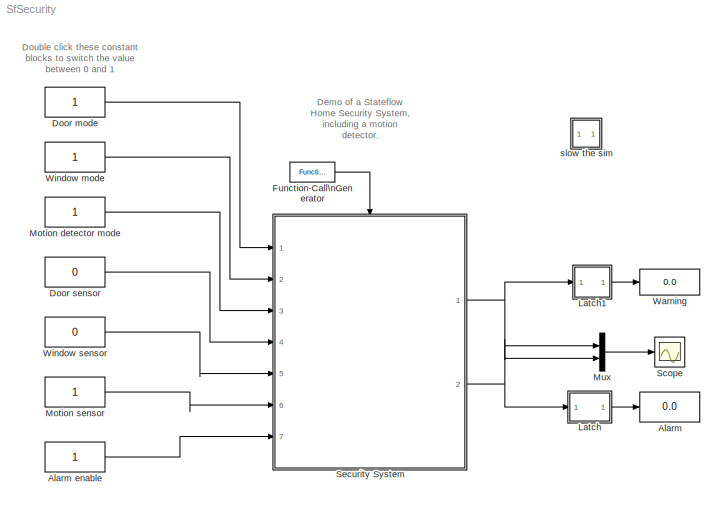
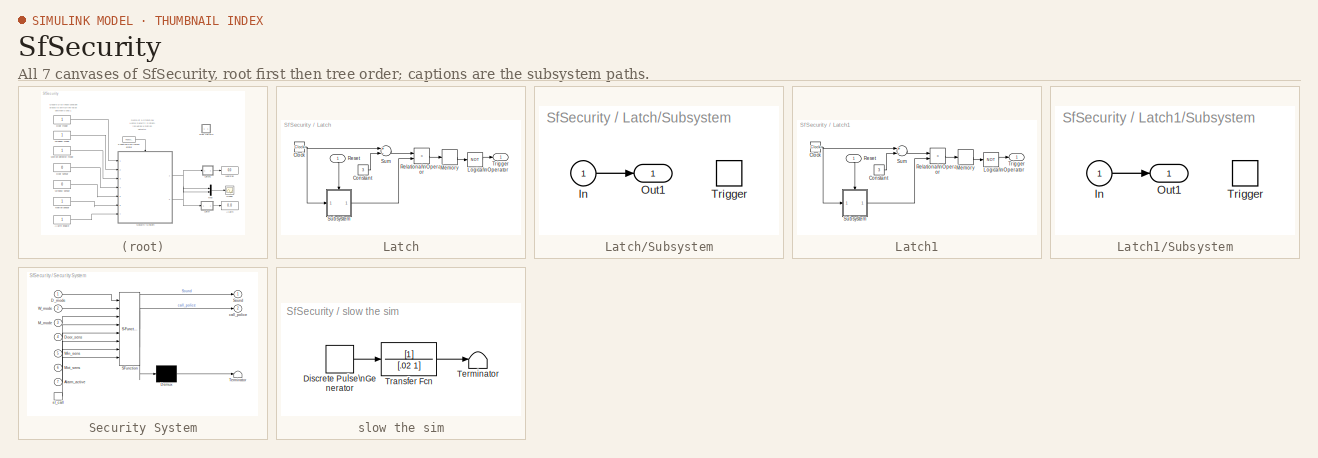
[diagram: thumbnail index - all 7 canvases of the model, root first then tree order]
MODEL SfSecurity
KIND model
BLOCK [Display] Alarm
  Decimation = 1
  Ports = [1]
BLOCK [Constant] Alarm enable
  OpenFcn = if strcmp(get_param(gcb,'value'),'1'), set_param(gcb,'value','0'); else set_param(gcb,'value','1'); end
BLOCK [Constant] Door mode
  OpenFcn = if strcmp(get_param(gcb,'value'),'1'), set_param(gcb,'value','0'); else set_param(gcb,'value','1'); end
BLOCK [Constant] Door sensor
  OpenFcn = if strcmp(get_param(gcb,'value'),'1'), set_param(gcb,'value','0'); else set_param(gcb,'value','1'); end
  Value = 0
BLOCK [Reference] Function-Call\nGenerator  REF=simulink/Ports &\nSubsystems/Function-Call\nGenerator
  Ports = [0, 1]
  SourceBlock = simulink/Ports &\nSubsystems/Function-Call\nGenerator
  SourceType = Function-Call Generator
  numberOfIterations = 1
  sample_time = .05
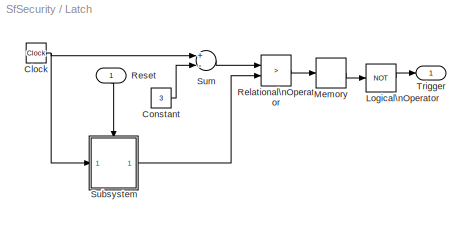
BLOCK [SubSystem] Latch
  MaskDisplay = disp('Hold')
  MaskIconFrame = on
  MaskIconOpaque = on
  MaskIconRotate = none
  MaskIconUnits = autoscale
  MinAlgLoopOccurrences = off
  Ports = [1, 1]
  RTWSystemCode = Auto
  TreatAsAtomicUnit = off
BLOCK [Clock] Latch/Clock
  Decimation = 10
BLOCK [Constant] Latch/Constant
  Value = 3
BLOCK [Logic] Latch/Logical\nOperator
  Inputs = 1
  Operator = NOT
  Ports = [1, 1]
BLOCK [Memory] Latch/Memory
  X0 = 1
BLOCK [RelationalOperator] Latch/Relational\nOperator
  Operator = >
BLOCK [Inport] Latch/Reset
  IconDisplay = Port number
  LatchInput = off
  Port = 1
BLOCK [SubSystem] Latch/Subsystem
  MinAlgLoopOccurrences = off
  Ports = [1, 1, 0, 1]
  RTWSystemCode = Auto
  TreatAsAtomicUnit = off
BLOCK [Inport] Latch/Subsystem/In
  IconDisplay = Port number
  LatchInput = off
  Port = 1
BLOCK [Outport] Latch/Subsystem/Out1
  BusOutputAsStruct = off
  IconDisplay = Port number
  InitialOutput = -10
BLOCK [TriggerPort] Latch/Subsystem/Trigger
  Ports = []
  TriggerType = either
BLOCK [Sum] Latch/Sum
  Inputs = +-
  Ports = [2, 1]
BLOCK [Outport] Latch/Trigger
  BusOutputAsStruct = off
  IconDisplay = Port number
  InitialOutput = 0
BLOCK [SubSystem] Latch1
  MaskDisplay = disp('Hold')
  MaskIconFrame = on
  MaskIconOpaque = on
  MaskIconRotate = none
  MaskIconUnits = autoscale
  MinAlgLoopOccurrences = off
  Ports = [1, 1]
  RTWSystemCode = Auto
  TreatAsAtomicUnit = off
BLOCK [Clock] Latch1/Clock
  Decimation = 10
BLOCK [Constant] Latch1/Constant
  Value = 3
BLOCK [Logic] Latch1/Logical\nOperator
  Inputs = 1
  Operator = NOT
  Ports = [1, 1]
BLOCK [Memory] Latch1/Memory
  X0 = 1
BLOCK [RelationalOperator] Latch1/Relational\nOperator
  Operator = >
BLOCK [Inport] Latch1/Reset
  IconDisplay = Port number
  LatchInput = off
  Port = 1
BLOCK [SubSystem] Latch1/Subsystem
  MinAlgLoopOccurrences = off
  Ports = [1, 1, 0, 1]
  RTWSystemCode = Auto
  TreatAsAtomicUnit = off
BLOCK [Inport] Latch1/Subsystem/In
  IconDisplay = Port number
  LatchInput = off
  Port = 1
BLOCK [Outport] Latch1/Subsystem/Out1
  BusOutputAsStruct = off
  IconDisplay = Port number
  InitialOutput = -10
BLOCK [TriggerPort] Latch1/Subsystem/Trigger
  Ports = []
  TriggerType = either
BLOCK [Sum] Latch1/Sum
  Inputs = +-
  Ports = [2, 1]
BLOCK [Outport] Latch1/Trigger
  BusOutputAsStruct = off
  IconDisplay = Port number
  InitialOutput = 0
BLOCK [Constant] Motion detector mode
  OpenFcn = if strcmp(get_param(gcb,'value'),'1'), set_param(gcb,'value','0'); else set_param(gcb,'value','1'); end
BLOCK [Constant] Motion sensor
  OpenFcn = if strcmp(get_param(gcb,'value'),'1'), set_param(gcb,'value','0'); else set_param(gcb,'value','1'); end
BLOCK [Mux] Mux
  DisplayOption = bar
  Inputs = 2
  Ports = [2, 1]
BLOCK [Scope] Scope
  DataFormat = Structure
  NumInputPorts = 1
  Ports = [1]
  SaveToWorkspace = on
  YMax = 1
  YMin = 0
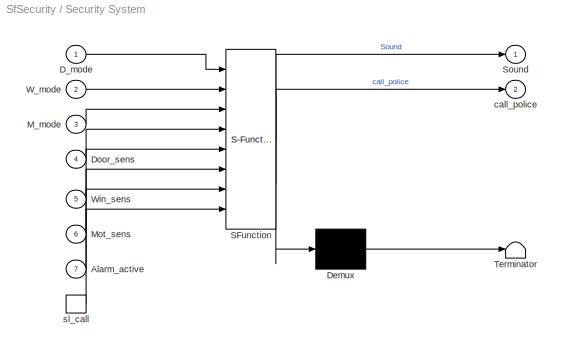
BLOCK [SubSystem] Security System
  MaskDescription = Stateflow diagram
  MaskDisplay = plot(sf('Private','sfblk','xIcon'),sf('Private','sfblk','yIcon'));text(0.5,0,sf('Private', 'sfblk', 'tIcon'),'HorizontalAl','Center','VerticalAl','Bottom');
  MaskIconFrame = off
  MaskIconOpaque = off
  MaskIconRotate = none
  MaskIconUnits = autoscale
  MaskSelfModifiable = on
  MaskType = Stateflow
  MinAlgLoopOccurrences = off
  Ports = [7, 2, 0, 1]
  RTWSystemCode = Auto
  TreatAsAtomicUnit = off
BLOCK [Demux] Security System/ Demux 
  Outputs = 1
  Ports = [1, 1]
BLOCK [S-Function] Security System/ SFunction 
  FunctionName = sf_sfun
  PortCounts = [8 3]
  Ports = [8, 3]
  Tag = Stateflow S-Function SfSecurity 1
BLOCK [Terminator] Security System/ Terminator 
BLOCK [Inport] Security System/Alarm_active
  IconDisplay = Port number
  LatchInput = off
  Port = 7
BLOCK [Inport] Security System/D_mode
  IconDisplay = Port number
  LatchInput = off
  Port = 1
BLOCK [Inport] Security System/Door_sens
  IconDisplay = Port number
  LatchInput = off
  Port = 4
BLOCK [Inport] Security System/M_mode
  IconDisplay = Port number
  LatchInput = off
  Port = 3
BLOCK [Inport] Security System/Mot_sens
  IconDisplay = Port number
  LatchInput = off
  Port = 6
BLOCK [Outport] Security System/Sound
  BusOutputAsStruct = off
  IconDisplay = Port number
BLOCK [Inport] Security System/W_mode
  IconDisplay = Port number
  LatchInput = off
  Port = 2
BLOCK [Inport] Security System/Win_sens
  IconDisplay = Port number
  LatchInput = off
  Port = 5
BLOCK [Outport] Security System/call_police
  BusOutputAsStruct = off
  IconDisplay = Port number
  Port = 2
BLOCK [TriggerPort] Security System/sl_call
  Ports = [0, 1]
  ShowOutputPort = on
  TriggerType = function-call
BLOCK [Display] Warning
  Decimation = 1
  Ports = [1]
BLOCK [Constant] Window mode
  OpenFcn = if strcmp(get_param(gcb,'value'),'1'), set_param(gcb,'value','0'); else set_param(gcb,'value','1'); end
BLOCK [Constant] Window sensor
  OpenFcn = if strcmp(get_param(gcb,'value'),'1'), set_param(gcb,'value','0'); else set_param(gcb,'value','1'); end
  Value = 0
BLOCK [SubSystem] slow the sim
  MinAlgLoopOccurrences = off
  Ports = []
  RTWSystemCode = Auto
  TreatAsAtomicUnit = off
BLOCK [DiscretePulseGenerator] slow the sim/Discrete Pulse\nGenerator
  Ports = [0, 1]
  SampleTime = 0.1
BLOCK [Terminator] slow the sim/Terminator
BLOCK [TransferFcn] slow the sim/Transfer Fcn
  Denominator = [.02 1]
ANNOTATION (root): Demo of a Stateflow \nHome Security System, \nincluding a motion\ndetector.
ANNOTATION (root): Double click these constant\nblocks to switch the value \nbetween 0 and 1
LINE Alarm enable:1 -> Security System:7
LINE Door mode:1 -> Security System:1
LINE Door sensor:1 -> Security System:4
LINE Function-Call\nGenerator:1 -> Security System:trigger
NET Latch/Clock:1 -> Latch/Subsystem:1, Latch/Sum:1
LINE Latch/Constant:1 -> Latch/Sum:2
LINE Latch/Logical\nOperator:1 -> Latch/Trigger:1
LINE Latch/Memory:1 -> Latch/Logical\nOperator:1
LINE Latch/Relational\nOperator:1 -> Latch/Memory:1
LINE Latch/Reset:1 -> Latch/Subsystem:trigger
LINE Latch/Subsystem/In:1 -> Latch/Subsystem/Out1:1
LINE Latch/Subsystem:1 -> Latch/Relational\nOperator:2
LINE Latch/Sum:1 -> Latch/Relational\nOperator:1
NET Latch1/Clock:1 -> Latch1/Subsystem:1, Latch1/Sum:1
LINE Latch1/Constant:1 -> Latch1/Sum:2
LINE Latch1/Logical\nOperator:1 -> Latch1/Trigger:1
LINE Latch1/Memory:1 -> Latch1/Logical\nOperator:1
LINE Latch1/Relational\nOperator:1 -> Latch1/Memory:1
LINE Latch1/Reset:1 -> Latch1/Subsystem:trigger
LINE Latch1/Subsystem/In:1 -> Latch1/Subsystem/Out1:1
LINE Latch1/Subsystem:1 -> Latch1/Relational\nOperator:2
LINE Latch1/Sum:1 -> Latch1/Relational\nOperator:1
LINE Latch1:1 -> Warning:1
LINE Latch:1 -> Alarm:1
LINE Motion detector mode:1 -> Security System:3
LINE Motion sensor:1 -> Security System:6
LINE Mux:1 -> Scope:1
LINE Security System/ Demux :1 -> Security System/ Terminator :1
LINE Security System/ SFunction :1 -> Security System/ Demux :1
LINE Security System/ SFunction :2 -> Security System/Sound:1
LINE Security System/ SFunction :3 -> Security System/call_police:1
LINE Security System/Alarm_active:1 -> Security System/ SFunction :7
LINE Security System/D_mode:1 -> Security System/ SFunction :1
LINE Security System/Door_sens:1 -> Security System/ SFunction :4
LINE Security System/M_mode:1 -> Security System/ SFunction :3
LINE Security System/Mot_sens:1 -> Security System/ SFunction :6
LINE Security System/W_mode:1 -> Security System/ SFunction :2
LINE Security System/Win_sens:1 -> Security System/ SFunction :5
LINE Security System/sl_call:1 -> Security System/ SFunction :8
NET Security System:1 -> Latch1:1, Mux:1
NET Security System:2 -> Latch:1, Mux:2
LINE Window mode:1 -> Security System:2
LINE Window sensor:1 -> Security System:5
LINE slow the sim/Discrete Pulse\nGenerator:1 -> slow the sim/Transfer Fcn:1
LINE slow the sim/Transfer Fcn:1 -> slow the sim/Terminator:1
note: NET lines group one-source signal fan-out (src -> all destinations, sorted); 1:1 wires keep LINE
CHART Security System states=19 transitions=23
  STATE_LABEL 'Idle'
  STATE_LABEL 'Motion'
  STATE_LABEL 'Off'
  STATE_LABEL 'Active'
  STATE_LABEL 'Pending\\nentry: Warn;'
  STATE_LABEL 'Idle'
  STATE_LABEL 'Debouncing'
  STATE_LABEL 'Win'
  STATE_LABEL 'Disabled'
  STATE_LABEL 'Disabled'
  STATE_LABEL 'Active'
  STATE_LABEL 'Alarm'
  STATE_LABEL 'On\\non  Warn: Sound;'
  STATE_LABEL 'Door'
  STATE_LABEL 'Disabled'
  STATE_LABEL 'Active'
  STATE_LABEL 'When an Alert event is\\nbroadcast to the Alarm\\nstate the pend state will\\nbe activated for a delay\\nperiod.  If the alarm is not\\ndisabled during the delay\\nperiod the police are\\ncontacted by the output\\nevent, call_police.'
  STATE_LABEL 'The Door and Win states read boolean status variables at each\\nupdate.  When the sensor variable is true a broadcast event is\\nsent to the Alarm state.  If the the sensor is active, the Alert\\nevent is broadcast, otherwise the warn event is broadcast.'
  STATE_LABEL 'Input from the motion sensor can be sporadic\\nso a debounce state is used.  The debouncing\\nstate remains active while Mot_sens is true.\\nAfter a delay period the Alert event is broadcast.'
